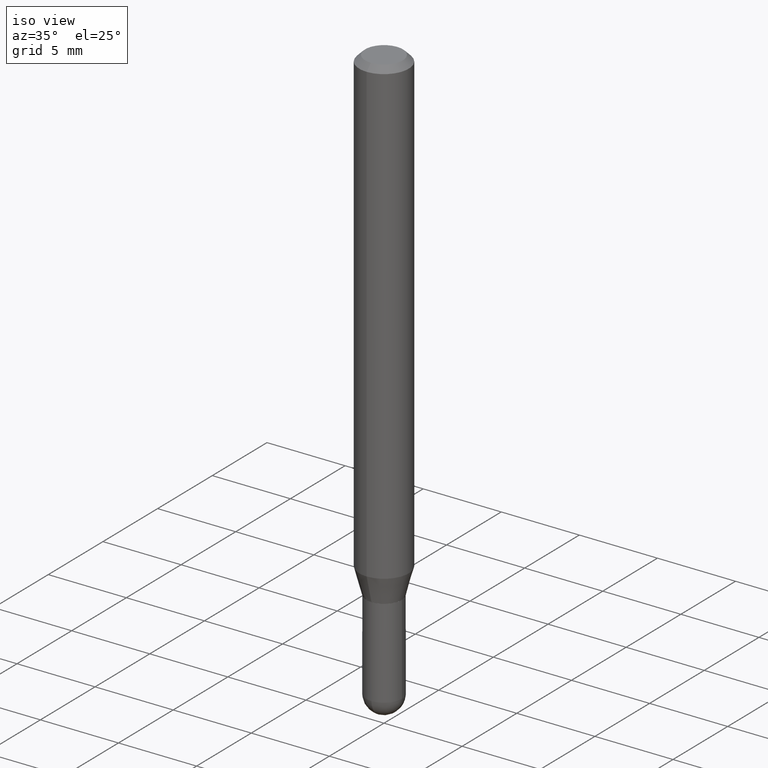
[diagram: clean part render]
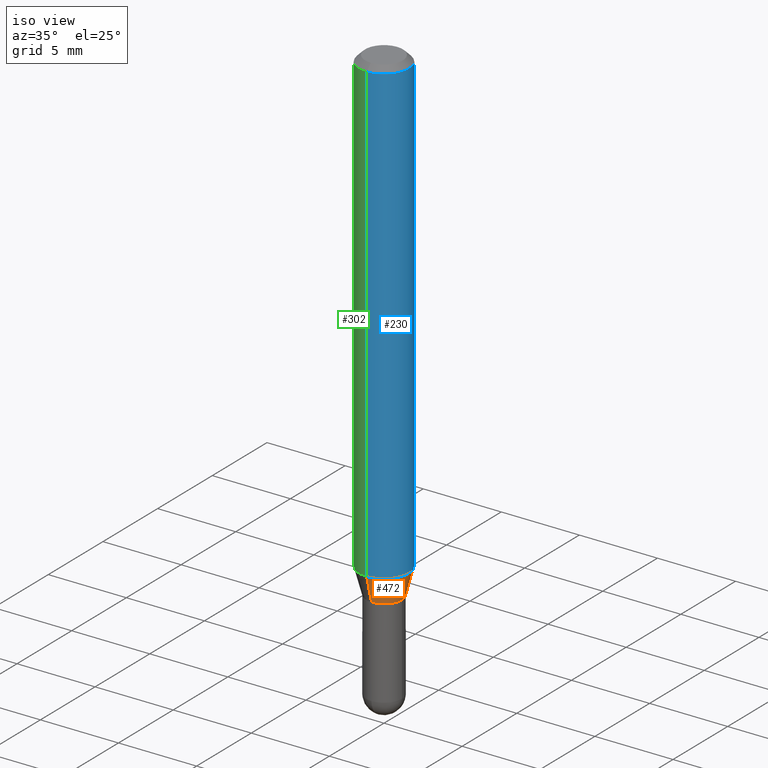
[diagram: same view with three faces highlighted in distinct colors, each labeled with its STEP entity id]
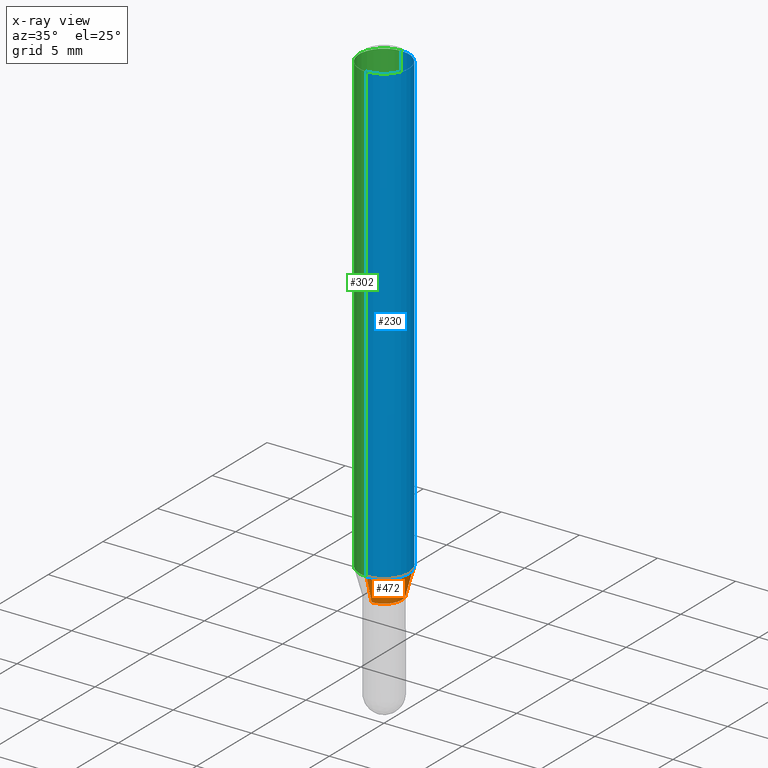
[diagram: x-ray of the same camera — body ghosted, the three highlighted faces saturated]
A machine part, iso view with three faces highlighted in distinct colors.
The next image is the same camera in x-ray (body ghosted, the three faces saturated) — at least one of them is partly hidden behind the body in this view.
Their STEP definitions:

[orange] entity #472 — the highlighted conical surface has half-angle 15 deg.
#10 = VERTEX_POINT ( 'NONE', #454 ) ;
#18 = CONICAL_SURFACE ( 'NONE', #315, 0.04500000000000006078, 0.2617993877991574014 ) ;
#21 = DIRECTION ( 'NONE',  ( -6.982962677686265922E-15, -1.000000000000000000, 3.035386659626955187E-15 ) ) ;
#23 = CARTESIAN_POINT ( 'NONE',  ( -3.142333204958523014E-16, -0.04500000000000434902, -1.230000000000000204 ) ) ;
#24 = ORIENTED_EDGE ( 'NONE', *, *, #38, .T. ) ;
#37 = DIRECTION ( 'NONE',  ( -2.445486063974693854E-29, 3.491456624706247087E-15, 1.000000000000000000 ) ) ;
#38 = EDGE_CURVE ( 'NONE', #497, #10, #166, .T. ) ;
#42 = CARTESIAN_POINT ( 'NONE',  ( 3.007947858688874508E-29, -4.294491648388685132E-15, -1.230000000000000426 ) ) ;
#52 = VECTOR ( 'NONE', #73, 39.37007874015748854 ) ;
#73 = DIRECTION ( 'NONE',  ( -1.807323732225378260E-15, -0.2588190451025250693, 0.9659258262890670910 ) ) ;
#81 = CARTESIAN_POINT ( 'NONE',  ( -4.364351673553631718E-16, -0.06250000000000406619, -1.164689110867547006 ) ) ;
#89 = EDGE_CURVE ( 'NONE', #426, #150, #123, .T. ) ;
#123 = CIRCLE ( 'NONE', #249, 0.06250000000000000000 ) ;
#134 = DIRECTION ( 'NONE',  ( -6.982962677686265922E-15, -1.000000000000000000, 4.370956789862821150E-15 ) ) ;
#148 = VECTOR ( 'NONE', #189, 39.37007874015748143 ) ;
#150 = VERTEX_POINT ( 'NONE', #217 ) ;
#156 = FACE_OUTER_BOUND ( 'NONE', #505, .T. ) ;
#165 = EDGE_CURVE ( 'NONE', #10, #150, #390, .T. ) ;
#166 = CIRCLE ( 'NONE', #309, 0.04500000000000006078 ) ;
#168 = DIRECTION ( 'NONE',  ( -2.445486063974693854E-29, 3.491456624706247087E-15, 1.000000000000000000 ) ) ;
#189 = DIRECTION ( 'NONE',  ( 1.839019923739649225E-15, 0.2588190451025318417, 0.9659258262890653146 ) ) ;
#194 = DIRECTION ( 'NONE',  ( -6.982962677686265922E-15, -1.000000000000000000, 3.035386659626955187E-15 ) ) ;
#204 = ORIENTED_EDGE ( 'NONE', *, *, #89, .F. ) ;
#217 = CARTESIAN_POINT ( 'NONE',  ( 4.440892098500910152E-16, 0.06249999999999592687, -1.164689110867547672 ) ) ;
#249 = AXIS2_PLACEMENT_3D ( 'NONE', #453, #483, #134 ) ;
#252 = ORIENTED_EDGE ( 'NONE', *, *, #255, .F. ) ;
#255 = EDGE_CURVE ( 'NONE', #497, #426, #341, .T. ) ;
#309 = AXIS2_PLACEMENT_3D ( 'NONE', #333, #168, #21 ) ;
#315 = AXIS2_PLACEMENT_3D ( 'NONE', #42, #37, #194 ) ;
#333 = CARTESIAN_POINT ( 'NONE',  ( 3.007947858688874508E-29, -4.294491648388685132E-15, -1.230000000000000426 ) ) ;
#341 = LINE ( 'NONE', #23, #52 ) ;
#351 = CARTESIAN_POINT ( 'NONE',  ( 3.197442310920755416E-16, 0.04499999999999576561, -1.230000000000000648 ) ) ;
#390 = LINE ( 'NONE', #351, #148 ) ;
#426 = VERTEX_POINT ( 'NONE', #81 ) ;
#453 = CARTESIAN_POINT ( 'NONE',  ( 2.848230989489664552E-29, -4.066461511861726664E-15, -1.164689110867547450 ) ) ;
#454 = CARTESIAN_POINT ( 'NONE',  ( 3.819167204710833277E-16, 0.04499999999999576561, -1.230000000000000648 ) ) ;
#472 = ADVANCED_FACE ( 'NONE', ( #156 ), #18, .T. ) ;
#483 = DIRECTION ( 'NONE',  ( -2.445486063974693854E-29, 3.491456624706247087E-15, 1.000000000000000000 ) ) ;
#484 = ORIENTED_EDGE ( 'NONE', *, *, #165, .T. ) ;
#486 = CARTESIAN_POINT ( 'NONE',  ( -3.142333204958523014E-16, -0.04500000000000434902, -1.230000000000000204 ) ) ;
#497 = VERTEX_POINT ( 'NONE', #486 ) ;
#505 = EDGE_LOOP ( 'NONE', ( #24, #484, #204, #252 ) ) ;

[blue] entity #230 — the highlighted cylindrical surface (edge-blend (fillet) strip) has radius 1.5875 mm, axis along (-0, 0, 1).
#57 = DIRECTION ( 'NONE',  ( -2.445486063974693573E-29, 3.491456624706247087E-15, 1.000000000000000000 ) ) ;
#69 = DIRECTION ( 'NONE',  ( -2.445486063974693854E-29, 3.491456624706247087E-15, 1.000000000000000000 ) ) ;
#76 = ORIENTED_EDGE ( 'NONE', *, *, #154, .T. ) ;
#81 = CARTESIAN_POINT ( 'NONE',  ( -4.364351673553631718E-16, -0.06250000000000406619, -1.164689110867547006 ) ) ;
#82 = AXIS2_PLACEMENT_3D ( 'NONE', #186, #69, #229 ) ;
#83 = DIRECTION ( 'NONE',  ( -2.445486063974693573E-29, 3.491456624706247087E-15, 1.000000000000000000 ) ) ;
#89 = EDGE_CURVE ( 'NONE', #426, #150, #123, .T. ) ;
#93 = CIRCLE ( 'NONE', #175, 0.06250000000000000000 ) ;
#110 = VERTEX_POINT ( 'NONE', #292 ) ;
#115 = ORIENTED_EDGE ( 'NONE', *, *, #352, .F. ) ;
#117 = VECTOR ( 'NONE', #83, 39.37007874015748143 ) ;
#123 = CIRCLE ( 'NONE', #249, 0.06250000000000000000 ) ;
#134 = DIRECTION ( 'NONE',  ( -6.982962677686265922E-15, -1.000000000000000000, 4.370956789862821150E-15 ) ) ;
#150 = VERTEX_POINT ( 'NONE', #217 ) ;
#154 = EDGE_CURVE ( 'NONE', #150, #110, #258, .T. ) ;
#164 = CARTESIAN_POINT ( 'NONE',  ( 3.668229095962043461E-31, -5.237184937059373195E-17, -0.01500000000000000812 ) ) ;
#175 = AXIS2_PLACEMENT_3D ( 'NONE', #164, #202, #396 ) ;
#182 = ORIENTED_EDGE ( 'NONE', *, *, #89, .T. ) ;
#186 = CARTESIAN_POINT ( 'NONE',  ( 0.000000000000000000, 0.000000000000000000, 0.000000000000000000 ) ) ;
#202 = DIRECTION ( 'NONE',  ( -2.445486063974693854E-29, 3.491456624706247087E-15, 1.000000000000000000 ) ) ;
#209 = VECTOR ( 'NONE', #57, 39.37007874015748143 ) ;
#217 = CARTESIAN_POINT ( 'NONE',  ( 4.440892098500910152E-16, 0.06249999999999592687, -1.164689110867547672 ) ) ;
#223 = VERTEX_POINT ( 'NONE', #271 ) ;
#229 = DIRECTION ( 'NONE',  ( -6.982962677686265922E-15, -1.000000000000000000, 3.491456624706247087E-15 ) ) ;
#230 = ADVANCED_FACE ( 'NONE', ( #504 ), #382, .T. ) ;
#249 = AXIS2_PLACEMENT_3D ( 'NONE', #453, #483, #134 ) ;
#258 = LINE ( 'NONE', #410, #209 ) ;
#271 = CARTESIAN_POINT ( 'NONE',  ( -4.364351673553912750E-16, -0.06250000000000005551, -0.01499999999999979128 ) ) ;
#280 = LINE ( 'NONE', #398, #117 ) ;
#292 = CARTESIAN_POINT ( 'NONE',  ( 4.440892098500913110E-16, 0.06249999999999995837, -0.01500000000000022669 ) ) ;
#293 = ORIENTED_EDGE ( 'NONE', *, *, #363, .F. ) ;
#352 = EDGE_CURVE ( 'NONE', #223, #110, #93, .T. ) ;
#363 = EDGE_CURVE ( 'NONE', #426, #223, #280, .T. ) ;
#382 = CYLINDRICAL_SURFACE ( 'NONE', #82, 0.06250000000000000000 ) ;
#396 = DIRECTION ( 'NONE',  ( -6.982962677686265922E-15, -1.000000000000000000, 3.483106191921935554E-15 ) ) ;
#398 = CARTESIAN_POINT ( 'NONE',  ( -4.364351673553916201E-16, -0.06250000000000000000, 2.182160390441404430E-16 ) ) ;
#410 = CARTESIAN_POINT ( 'NONE',  ( 4.440892098500625669E-16, 0.06250000000000000000, -2.182160390441404430E-16 ) ) ;
#426 = VERTEX_POINT ( 'NONE', #81 ) ;
#453 = CARTESIAN_POINT ( 'NONE',  ( 2.848230989489664552E-29, -4.066461511861726664E-15, -1.164689110867547450 ) ) ;
#483 = DIRECTION ( 'NONE',  ( -2.445486063974693854E-29, 3.491456624706247087E-15, 1.000000000000000000 ) ) ;
#493 = EDGE_LOOP ( 'NONE', ( #182, #76, #115, #293 ) ) ;
#504 = FACE_OUTER_BOUND ( 'NONE', #493, .T. ) ;

[green] entity #302 — the highlighted cylindrical surface (edge-blend (fillet) strip) has radius 1.5875 mm, axis along (-0, 0, 1).
#35 = ORIENTED_EDGE ( 'NONE', *, *, #456, .T. ) ;
#57 = DIRECTION ( 'NONE',  ( -2.445486063974693573E-29, 3.491456624706247087E-15, 1.000000000000000000 ) ) ;
#65 = ORIENTED_EDGE ( 'NONE', *, *, #154, .F. ) ;
#81 = CARTESIAN_POINT ( 'NONE',  ( -4.364351673553631718E-16, -0.06250000000000406619, -1.164689110867547006 ) ) ;
#83 = DIRECTION ( 'NONE',  ( -2.445486063974693573E-29, 3.491456624706247087E-15, 1.000000000000000000 ) ) ;
#94 = CIRCLE ( 'NONE', #161, 0.06250000000000000000 ) ;
#110 = VERTEX_POINT ( 'NONE', #292 ) ;
#117 = VECTOR ( 'NONE', #83, 39.37007874015748143 ) ;
#118 = DIRECTION ( 'NONE',  ( -2.445486063974693854E-29, 3.491456624706247087E-15, 1.000000000000000000 ) ) ;
#124 = AXIS2_PLACEMENT_3D ( 'NONE', #310, #118, #236 ) ;
#150 = VERTEX_POINT ( 'NONE', #217 ) ;
#154 = EDGE_CURVE ( 'NONE', #150, #110, #258, .T. ) ;
#161 = AXIS2_PLACEMENT_3D ( 'NONE', #501, #378, #469 ) ;
#198 = CARTESIAN_POINT ( 'NONE',  ( 2.848230989489664552E-29, -4.066461511861726664E-15, -1.164689110867547450 ) ) ;
#209 = VECTOR ( 'NONE', #57, 39.37007874015748143 ) ;
#217 = CARTESIAN_POINT ( 'NONE',  ( 4.440892098500910152E-16, 0.06249999999999592687, -1.164689110867547672 ) ) ;
#223 = VERTEX_POINT ( 'NONE', #271 ) ;
#236 = DIRECTION ( 'NONE',  ( -6.982962677686265922E-15, -1.000000000000000000, 3.491456624706247087E-15 ) ) ;
#247 = DIRECTION ( 'NONE',  ( -2.445486063974693854E-29, 3.491456624706247087E-15, 1.000000000000000000 ) ) ;
#248 = CIRCLE ( 'NONE', #399, 0.06250000000000000000 ) ;
#258 = LINE ( 'NONE', #410, #209 ) ;
#270 = ORIENTED_EDGE ( 'NONE', *, *, #363, .T. ) ;
#271 = CARTESIAN_POINT ( 'NONE',  ( -4.364351673553912750E-16, -0.06250000000000005551, -0.01499999999999979128 ) ) ;
#279 = EDGE_CURVE ( 'NONE', #110, #223, #94, .T. ) ;
#280 = LINE ( 'NONE', #398, #117 ) ;
#292 = CARTESIAN_POINT ( 'NONE',  ( 4.440892098500913110E-16, 0.06249999999999995837, -0.01500000000000022669 ) ) ;
#302 = ADVANCED_FACE ( 'NONE', ( #344 ), #312, .T. ) ;
#310 = CARTESIAN_POINT ( 'NONE',  ( 0.000000000000000000, 0.000000000000000000, 0.000000000000000000 ) ) ;
#312 = CYLINDRICAL_SURFACE ( 'NONE', #124, 0.06250000000000000000 ) ;
#344 = FACE_OUTER_BOUND ( 'NONE', #388, .T. ) ;
#358 = DIRECTION ( 'NONE',  ( -6.982962677686265922E-15, -1.000000000000000000, 4.370956789862821150E-15 ) ) ;
#363 = EDGE_CURVE ( 'NONE', #426, #223, #280, .T. ) ;
#378 = DIRECTION ( 'NONE',  ( -2.445486063974693854E-29, 3.491456624706247087E-15, 1.000000000000000000 ) ) ;
#388 = EDGE_LOOP ( 'NONE', ( #65, #35, #270, #444 ) ) ;
#398 = CARTESIAN_POINT ( 'NONE',  ( -4.364351673553916201E-16, -0.06250000000000000000, 2.182160390441404430E-16 ) ) ;
#399 = AXIS2_PLACEMENT_3D ( 'NONE', #198, #247, #358 ) ;
#410 = CARTESIAN_POINT ( 'NONE',  ( 4.440892098500625669E-16, 0.06250000000000000000, -2.182160390441404430E-16 ) ) ;
#426 = VERTEX_POINT ( 'NONE', #81 ) ;
#444 = ORIENTED_EDGE ( 'NONE', *, *, #279, .F. ) ;
#456 = EDGE_CURVE ( 'NONE', #150, #426, #248, .T. ) ;
#469 = DIRECTION ( 'NONE',  ( -6.982962677686265922E-15, -1.000000000000000000, 3.483106191921935554E-15 ) ) ;
#501 = CARTESIAN_POINT ( 'NONE',  ( 3.668229095962043461E-31, -5.237184937059373195E-17, -0.01500000000000000812 ) ) ;